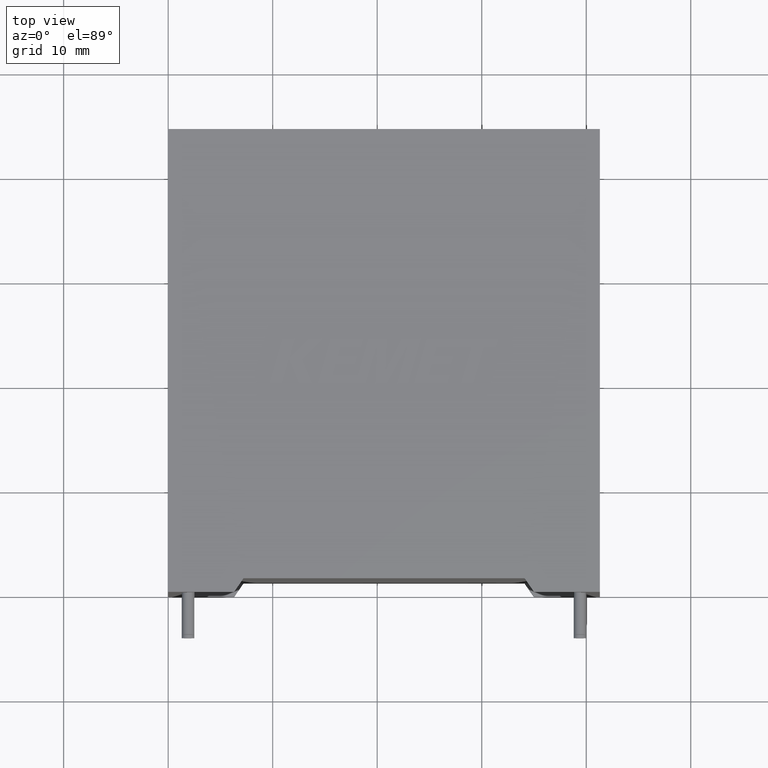
[diagram: clean part render]
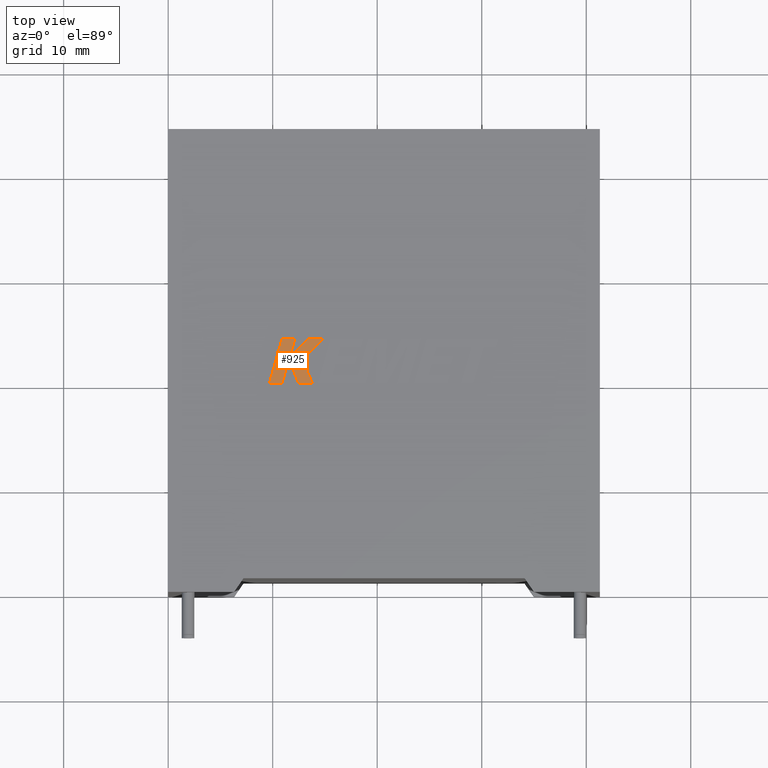
[diagram: same view with one face highlighted and labeled with its STEP entity id]
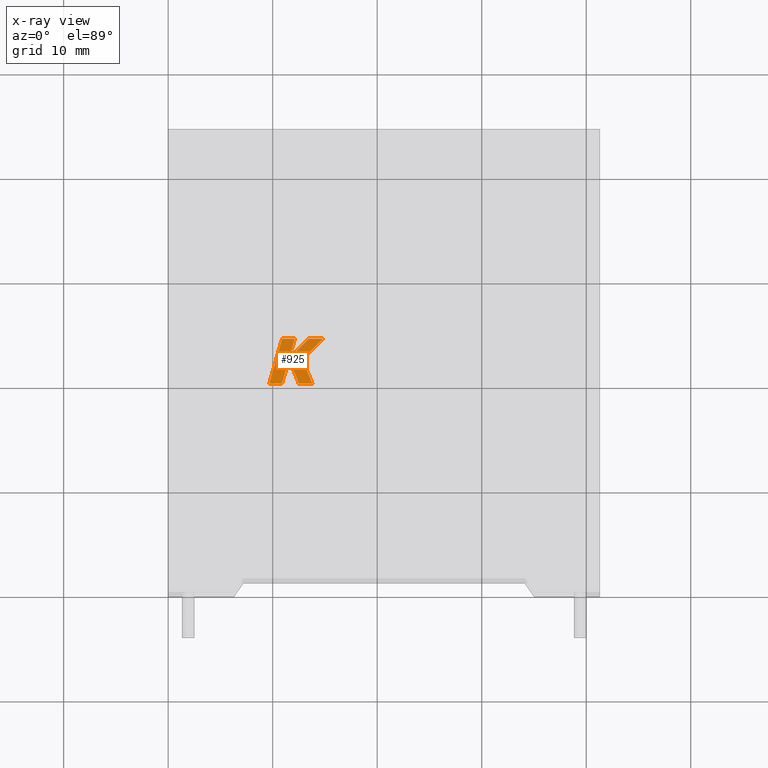
[diagram: x-ray of the same camera — body ghosted, the highlighted face saturated]
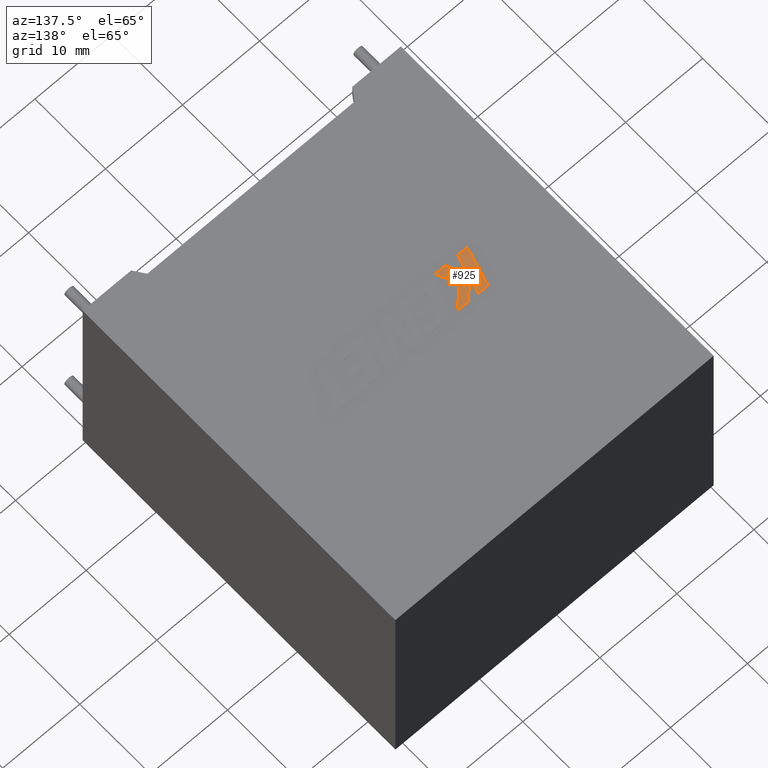
[diagram: same view with one face highlighted and labeled with its STEP entity id]
A machine part, top view. The second image highlights one B-rep face of the part: STEP entity #925.
The next image is the same camera in x-ray: the body ghosted, the highlighted face saturated — about 0% of this face is hidden behind the body in this view.
A second angle (auxiliary view) of the same face is appended — the face is thin or edge-on in the first view.
In plain terms, the highlighted planar face has unit normal (0, 0, -1).
Its self-contained STEP definition (entity closure, byte-faithful):
#25 = LINE ( 'NONE', #562, #3292 ) ;
#42 = CARTESIAN_POINT ( 'NONE',  ( 13.80181475293354300, 19.92170999999988000, 29.30500000000000000 ) ) ;
#146 = CARTESIAN_POINT ( 'NONE',  ( 14.84144523241778500, 24.22188796330467400, 29.30500000000000000 ) ) ;
#226 = EDGE_CURVE ( 'NONE', #1067, #1059, #1580, .T. ) ;
#261 = EDGE_CURVE ( 'NONE', #896, #1210, #1329, .T. ) ;
#268 = EDGE_CURVE ( 'NONE', #2392, #1519, #25, .T. ) ;
#291 = DIRECTION ( 'NONE',  ( 1.000000000000000000, 0.0000000000000000000, 0.0000000000000000000 ) ) ;
#307 = LINE ( 'NONE', #1656, #1774 ) ;
#325 = DIRECTION ( 'NONE',  ( 0.2755520632520630000, 0.9612861490927303600, 0.0000000000000000000 ) ) ;
#342 = CARTESIAN_POINT ( 'NONE',  ( 14.84144523241778500, 24.22188796330467400, 29.30500000000000000 ) ) ;
#396 = VERTEX_POINT ( 'NONE', #573 ) ;
#428 = LINE ( 'NONE', #1911, #1037 ) ;
#459 = VECTOR ( 'NONE', #3298, 1000.000000000000000 ) ;
#497 = EDGE_CURVE ( 'NONE', #3055, #2392, #428, .T. ) ;
#547 = VECTOR ( 'NONE', #1815, 1000.000000000000100 ) ;
#562 = CARTESIAN_POINT ( 'NONE',  ( 11.55619880355456500, 22.25658992538092600, 29.30500000000000000 ) ) ;
#573 = CARTESIAN_POINT ( 'NONE',  ( 11.59875838541846000, 22.38812582675862500, 29.30500000000000000 ) ) ;
#583 = CARTESIAN_POINT ( 'NONE',  ( 10.89999679095135600, 24.22188796330467400, 29.30500000000000000 ) ) ;
#607 = DIRECTION ( 'NONE',  ( 0.0000000000000000000, 0.0000000000000000000, -1.000000000000000000 ) ) ;
#722 = CARTESIAN_POINT ( 'NONE',  ( 12.49341171344826800, 19.92170999999988000, 29.30500000000000000 ) ) ;
#751 = CARTESIAN_POINT ( 'NONE',  ( 12.83399294193786300, 22.25658992538095400, 29.30500000000000000 ) ) ;
#764 = DIRECTION ( 'NONE',  ( -1.000000000000000000, -0.0000000000000000000, -0.0000000000000000000 ) ) ;
#843 = EDGE_CURVE ( 'NONE', #1059, #396, #1732, .T. ) ;
#875 = DIRECTION ( 'NONE',  ( 1.000000000000000000, -9.627704771323334300E-014, 0.0000000000000000000 ) ) ;
#896 = VERTEX_POINT ( 'NONE', #1014 ) ;
#925 = ADVANCED_FACE ( 'NONE', ( #2572 ), #1941, .F. ) ;
#949 = ORIENTED_EDGE ( 'NONE', *, *, #1397, .T. ) ;
#972 = VECTOR ( 'NONE', #2685, 1000.000000000000000 ) ;
#1014 = CARTESIAN_POINT ( 'NONE',  ( 13.80181475293354300, 19.92170999999988000, 29.30500000000000000 ) ) ;
#1037 = VECTOR ( 'NONE', #875, 1000.000000000000000 ) ;
#1039 = CARTESIAN_POINT ( 'NONE',  ( 11.59875838541846000, 22.38812582675862500, 29.30500000000000000 ) ) ;
#1059 = VERTEX_POINT ( 'NONE', #2783 ) ;
#1067 = VERTEX_POINT ( 'NONE', #146 ) ;
#1116 = ORIENTED_EDGE ( 'NONE', *, *, #843, .T. ) ;
#1145 = VECTOR ( 'NONE', #3146, 1000.000000000000000 ) ;
#1166 = CARTESIAN_POINT ( 'NONE',  ( 9.664199999999997500, 19.92170999999999700, 29.30500000000000000 ) ) ;
#1210 = VERTEX_POINT ( 'NONE', #2310 ) ;
#1249 = ORIENTED_EDGE ( 'NONE', *, *, #3140, .T. ) ;
#1257 = AXIS2_PLACEMENT_3D ( 'NONE', #1660, #607, #2206 ) ;
#1329 = LINE ( 'NONE', #751, #547 ) ;
#1334 = CARTESIAN_POINT ( 'NONE',  ( 9.664199999999997500, 19.92170999999999700, 29.30500000000000000 ) ) ;
#1347 = ORIENTED_EDGE ( 'NONE', *, *, #226, .T. ) ;
#1364 = LINE ( 'NONE', #1166, #459 ) ;
#1397 = EDGE_CURVE ( 'NONE', #396, #3437, #1906, .T. ) ;
#1519 = VERTEX_POINT ( 'NONE', #2491 ) ;
#1550 = CARTESIAN_POINT ( 'NONE',  ( 10.88697394875592300, 19.92170999999988000, 29.30500000000000000 ) ) ;
#1555 = EDGE_CURVE ( 'NONE', #1519, #2175, #307, .T. ) ;
#1561 = EDGE_CURVE ( 'NONE', #2847, #3055, #1364, .T. ) ;
#1580 = LINE ( 'NONE', #2332, #2986 ) ;
#1584 = ORIENTED_EDGE ( 'NONE', *, *, #268, .T. ) ;
#1591 = DIRECTION ( 'NONE',  ( 0.2755265765475140000, 0.9612934544747545600, 0.0000000000000000000 ) ) ;
#1600 = ORIENTED_EDGE ( 'NONE', *, *, #1931, .T. ) ;
#1656 = CARTESIAN_POINT ( 'NONE',  ( 12.49341171344826800, 19.92170999999988000, 29.30500000000000000 ) ) ;
#1660 = CARTESIAN_POINT ( 'NONE',  ( -0.1457575896631480000, -1.623224047257569000, 29.30500000000000000 ) ) ;
#1672 = ORIENTED_EDGE ( 'NONE', *, *, #1561, .T. ) ;
#1703 = CARTESIAN_POINT ( 'NONE',  ( 10.89999679095135600, 24.22188796330467400, 29.30500000000000000 ) ) ;
#1731 = LINE ( 'NONE', #42, #2150 ) ;
#1732 = LINE ( 'NONE', #1039, #1145 ) ;
#1749 = ORIENTED_EDGE ( 'NONE', *, *, #2552, .T. ) ;
#1760 = EDGE_LOOP ( 'NONE', ( #1672, #2875, #1584, #1965, #1749, #2967, #1249, #1347, #1116, #949, #1600 ) ) ;
#1774 = VECTOR ( 'NONE', #2461, 999.9999999999998900 ) ;
#1815 = DIRECTION ( 'NONE',  ( -0.3829140317377010000, 0.9237839814038664200, 0.0000000000000000000 ) ) ;
#1896 = LINE ( 'NONE', #583, #3115 ) ;
#1906 = LINE ( 'NONE', #2161, #2157 ) ;
#1911 = CARTESIAN_POINT ( 'NONE',  ( 10.88697394875592300, 19.92170999999988000, 29.30500000000000000 ) ) ;
#1931 = EDGE_CURVE ( 'NONE', #3437, #2847, #1896, .T. ) ;
#1941 = PLANE ( 'NONE',  #1257 ) ;
#1965 = ORIENTED_EDGE ( 'NONE', *, *, #1555, .T. ) ;
#2150 = VECTOR ( 'NONE', #291, 1000.000000000000000 ) ;
#2157 = VECTOR ( 'NONE', #325, 1000.000000000000100 ) ;
#2161 = CARTESIAN_POINT ( 'NONE',  ( 12.12440513557259300, 24.22188796330467400, 29.30500000000000000 ) ) ;
#2175 = VERTEX_POINT ( 'NONE', #722 ) ;
#2206 = DIRECTION ( 'NONE',  ( -1.000000000000000000, 0.0000000000000000000, 0.0000000000000000000 ) ) ;
#2222 = LINE ( 'NONE', #342, #972 ) ;
#2310 = CARTESIAN_POINT ( 'NONE',  ( 12.83399294193786300, 22.25658992538095400, 29.30500000000000000 ) ) ;
#2332 = CARTESIAN_POINT ( 'NONE',  ( 13.42629675568656600, 24.22188796330467400, 29.30500000000000000 ) ) ;
#2392 = VERTEX_POINT ( 'NONE', #1550 ) ;
#2461 = DIRECTION ( 'NONE',  ( 0.3725077383644760400, -0.9280290862136719700, 0.0000000000000000000 ) ) ;
#2491 = CARTESIAN_POINT ( 'NONE',  ( 11.55619880355456500, 22.25658992538092600, 29.30500000000000000 ) ) ;
#2552 = EDGE_CURVE ( 'NONE', #2175, #896, #1731, .T. ) ;
#2572 = FACE_OUTER_BOUND ( 'NONE', #1760, .T. ) ;
#2685 = DIRECTION ( 'NONE',  ( 0.7145695586381801700, 0.6995643972270433300, 0.0000000000000000000 ) ) ;
#2783 = CARTESIAN_POINT ( 'NONE',  ( 13.42629675568656600, 24.22188796330467400, 29.30500000000000000 ) ) ;
#2813 = CARTESIAN_POINT ( 'NONE',  ( 12.12440513557259300, 24.22188796330467400, 29.30500000000000000 ) ) ;
#2847 = VERTEX_POINT ( 'NONE', #1703 ) ;
#2875 = ORIENTED_EDGE ( 'NONE', *, *, #497, .T. ) ;
#2967 = ORIENTED_EDGE ( 'NONE', *, *, #261, .T. ) ;
#2986 = VECTOR ( 'NONE', #764, 1000.000000000000000 ) ;
#3055 = VERTEX_POINT ( 'NONE', #1334 ) ;
#3115 = VECTOR ( 'NONE', #3209, 1000.000000000000000 ) ;
#3140 = EDGE_CURVE ( 'NONE', #1210, #1067, #2222, .T. ) ;
#3146 = DIRECTION ( 'NONE',  ( -0.7059037656364544100, -0.7083077534943929000, -0.0000000000000000000 ) ) ;
#3209 = DIRECTION ( 'NONE',  ( -1.000000000000000000, -0.0000000000000000000, -0.0000000000000000000 ) ) ;
#3292 = VECTOR ( 'NONE', #1591, 1000.000000000000100 ) ;
#3298 = DIRECTION ( 'NONE',  ( -0.2762033010251979100, -0.9610992334315868700, -0.0000000000000000000 ) ) ;
#3437 = VERTEX_POINT ( 'NONE', #2813 ) ;